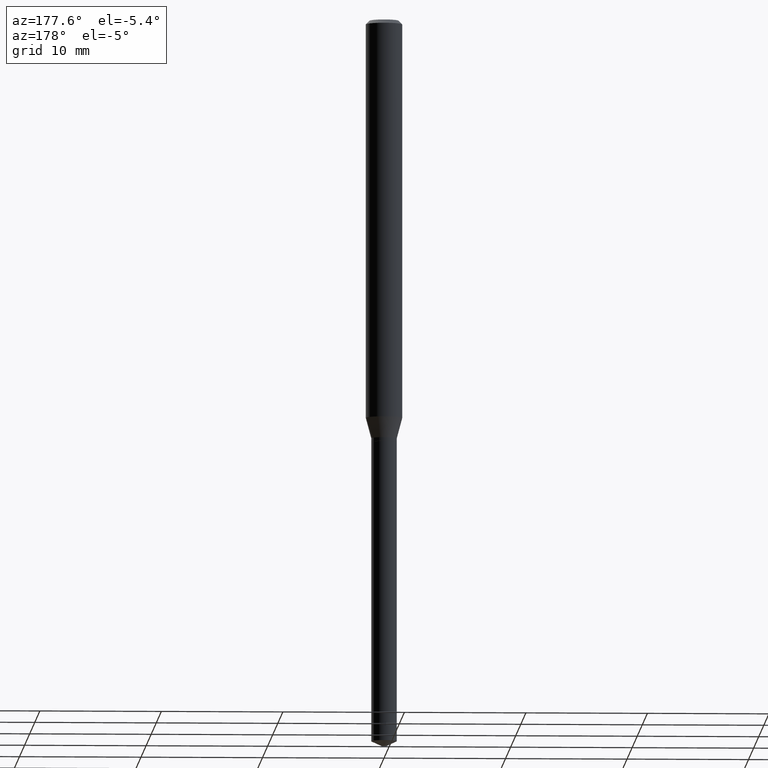
[diagram: clean part render]
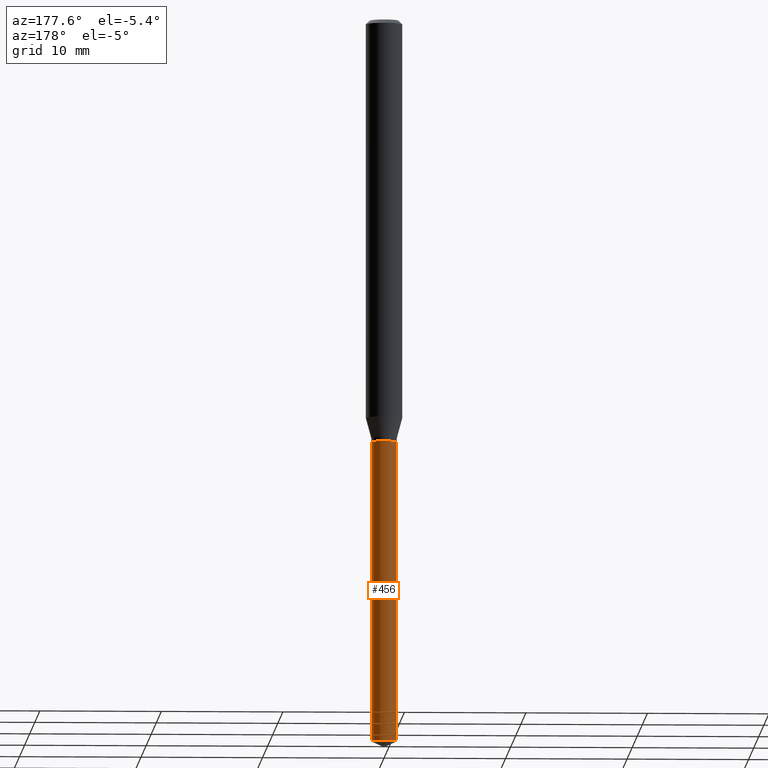
[diagram: same view with one face highlighted and labeled with its STEP entity id]
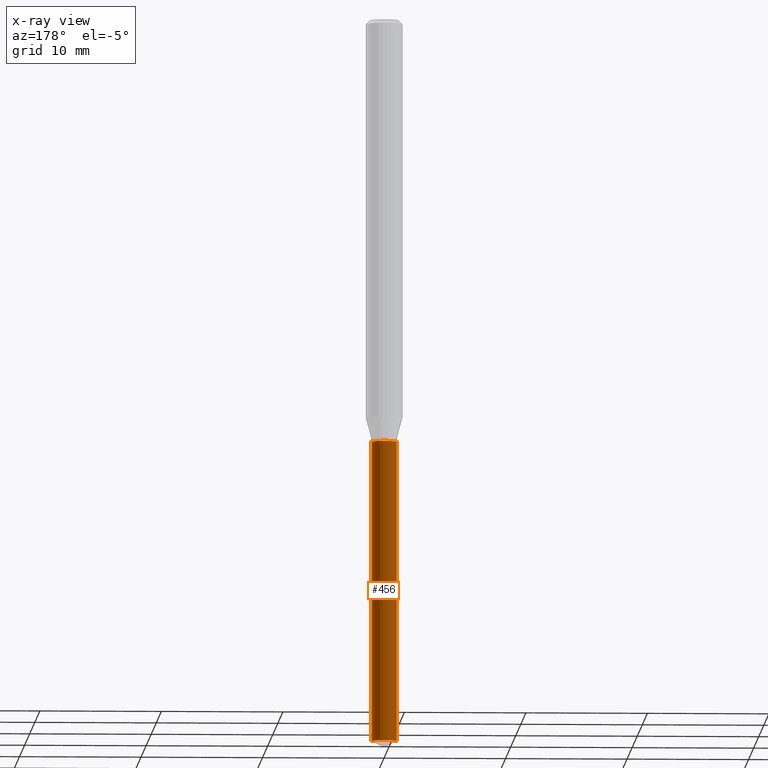
[diagram: x-ray of the same camera — body ghosted, the highlighted face saturated]
A machine part, auxiliary view. The second image highlights one B-rep face of the part: STEP entity #456.
The next image is the same camera in x-ray: the body ghosted, the highlighted face saturated — about 0% of this face is hidden behind the body in this view.
In plain terms, the highlighted cylindrical surface (edge-blend (fillet) strip) has radius 1.0503 mm, axis along (-0, 0, 1).
Its self-contained STEP definition (entity closure, byte-faithful):
#2 = AXIS2_PLACEMENT_3D ( 'NONE', #222, #144, #259 ) ;
#4 = LINE ( 'NONE', #301, #393 ) ;
#6 = VERTEX_POINT ( 'NONE', #345 ) ;
#12 = VECTOR ( 'NONE', #134, 39.37007874015748143 ) ;
#17 = CARTESIAN_POINT ( 'NONE',  ( -0.04134999999999999787, -6.187459122716950481E-15, -1.369900000000000118 ) ) ;
#19 = DIRECTION ( 'NONE',  ( 1.000000000000000000, -6.982962677686273021E-15, 0.000000000000000000 ) ) ;
#28 = ORIENTED_EDGE ( 'NONE', *, *, #293, .T. ) ;
#79 = CIRCLE ( 'NONE', #302, 0.04134999999999999787 ) ;
#84 = VERTEX_POINT ( 'NONE', #17 ) ;
#88 = EDGE_CURVE ( 'NONE', #419, #84, #450, .T. ) ;
#92 = DIRECTION ( 'NONE',  ( 1.000000000000000000, -6.982962677686273021E-15, 0.000000000000000000 ) ) ;
#119 = CARTESIAN_POINT ( 'NONE',  ( -0.04135000000000000481, -7.885747380589476781E-15, -2.342718178335291057 ) ) ;
#134 = DIRECTION ( 'NONE',  ( -2.445468806185136877E-29, 3.491481338843145188E-15, 1.000000000000000000 ) ) ;
#137 = DIRECTION ( 'NONE',  ( -2.445468806185136597E-29, 3.491481338843145583E-15, 1.000000000000000000 ) ) ;
#143 = EDGE_CURVE ( 'NONE', #192, #84, #4, .T. ) ;
#144 = DIRECTION ( 'NONE',  ( -2.445468806185136597E-29, 3.491481338843145583E-15, 1.000000000000000000 ) ) ;
#153 = ORIENTED_EDGE ( 'NONE', *, *, #88, .F. ) ;
#163 = CARTESIAN_POINT ( 'NONE',  ( 5.729044226801822300E-29, -8.179556801826278193E-15, -2.342718178335291057 ) ) ;
#175 = CARTESIAN_POINT ( 'NONE',  ( 0.04134999999999999787, -5.071725792803552539E-15, -1.369900000000000118 ) ) ;
#192 = VERTEX_POINT ( 'NONE', #119 ) ;
#219 = FACE_OUTER_BOUND ( 'NONE', #451, .T. ) ;
#222 = CARTESIAN_POINT ( 'NONE',  ( 3.350047717593018824E-29, -4.782980286081224804E-15, -1.369900000000000118 ) ) ;
#230 = ORIENTED_EDGE ( 'NONE', *, *, #367, .F. ) ;
#246 = CARTESIAN_POINT ( 'NONE',  ( 3.350047717593018824E-29, -4.782980286081224804E-15, -1.369900000000000118 ) ) ;
#259 = DIRECTION ( 'NONE',  ( 1.000000000000000000, -6.982962677686273021E-15, 0.000000000000000000 ) ) ;
#290 = CARTESIAN_POINT ( 'NONE',  ( 0.04134999999999999787, -5.071725792803552539E-15, -1.369900000000000118 ) ) ;
#293 = EDGE_CURVE ( 'NONE', #6, #192, #79, .T. ) ;
#301 = CARTESIAN_POINT ( 'NONE',  ( -0.04134999999999999787, -4.489170864844424181E-15, -1.369900000000000118 ) ) ;
#302 = AXIS2_PLACEMENT_3D ( 'NONE', #163, #137, #19 ) ;
#303 = ORIENTED_EDGE ( 'NONE', *, *, #143, .T. ) ;
#326 = LINE ( 'NONE', #175, #12 ) ;
#340 = DIRECTION ( 'NONE',  ( -2.445468806185136877E-29, 3.491481338843145188E-15, 1.000000000000000000 ) ) ;
#345 = CARTESIAN_POINT ( 'NONE',  ( 0.04135000000000000481, -8.468302308548605138E-15, -2.342718178335291057 ) ) ;
#367 = EDGE_CURVE ( 'NONE', #6, #419, #326, .T. ) ;
#393 = VECTOR ( 'NONE', #340, 39.37007874015748143 ) ;
#408 = AXIS2_PLACEMENT_3D ( 'NONE', #246, #471, #92 ) ;
#419 = VERTEX_POINT ( 'NONE', #290 ) ;
#441 = CYLINDRICAL_SURFACE ( 'NONE', #2, 0.04134999999999999787 ) ;
#450 = CIRCLE ( 'NONE', #408, 0.04134999999999999787 ) ;
#451 = EDGE_LOOP ( 'NONE', ( #28, #303, #153, #230 ) ) ;
#456 = ADVANCED_FACE ( 'NONE', ( #219 ), #441, .T. ) ;
#471 = DIRECTION ( 'NONE',  ( -2.445468806185136597E-29, 3.491481338843145583E-15, 1.000000000000000000 ) ) ;